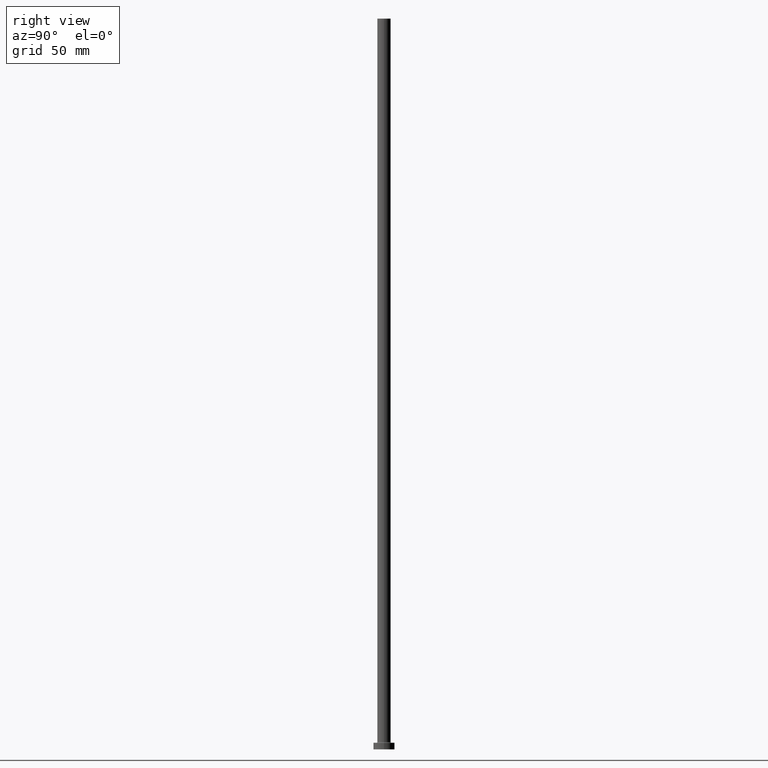
[diagram: clean part render]
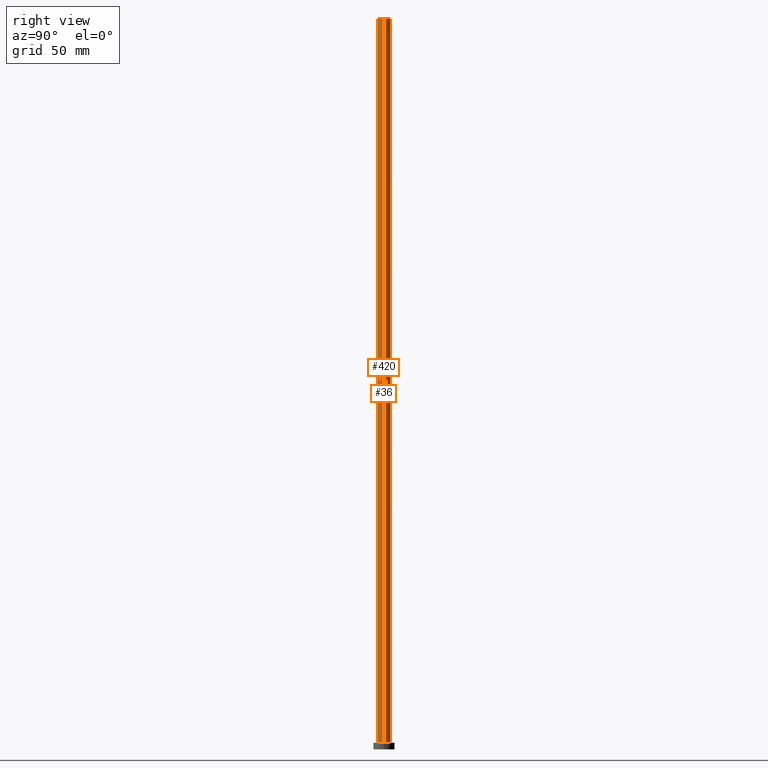
[diagram: same view with one multi-face feature highlighted, each face labeled with its STEP entity id]
A machine part, right view. The highlighted faces form ONE feature: a constant-radius fillet chain: 2 tangent blend faces with common blend radius 5 mm. The faces share edges in the B-rep.
Their STEP definitions:
[1] entity #420 (Cylinder):
#11 = CARTESIAN_POINT ( 'NONE',  ( 5.000000000000000000, 6.123233995736766282E-16, 5.499999999999949374 ) ) ;
#20 = CARTESIAN_POINT ( 'NONE',  ( 0.000000000000000000, 0.000000000000000000, 550.0000000000000000 ) ) ;
#23 = CARTESIAN_POINT ( 'NONE',  ( 5.000000000000000000, 6.123233995736766282E-16, 550.0000000000000000 ) ) ;
#44 = VECTOR ( 'NONE', #352, 1000.000000000000000 ) ;
#48 = VERTEX_POINT ( 'NONE', #23 ) ;
#51 = EDGE_CURVE ( 'NONE', #273, #48, #174, .T. ) ;
#60 = AXIS2_PLACEMENT_3D ( 'NONE', #158, #300, #225 ) ;
#71 = ORIENTED_EDGE ( 'NONE', *, *, #51, .F. ) ;
#80 = EDGE_CURVE ( 'NONE', #273, #195, #426, .T. ) ;
#82 = AXIS2_PLACEMENT_3D ( 'NONE', #20, #285, #391 ) ;
#83 = ORIENTED_EDGE ( 'NONE', *, *, #115, .F. ) ;
#106 = LINE ( 'NONE', #171, #188 ) ;
#115 = EDGE_CURVE ( 'NONE', #48, #349, #106, .T. ) ;
#117 = CARTESIAN_POINT ( 'NONE',  ( -5.000000000000000000, 0.000000000000000000, 5.499999999999949374 ) ) ;
#131 = CYLINDRICAL_SURFACE ( 'NONE', #60, 5.000000000000000000 ) ;
#158 = CARTESIAN_POINT ( 'NONE',  ( 0.000000000000000000, 0.000000000000000000, 550.0000000000000000 ) ) ;
#171 = CARTESIAN_POINT ( 'NONE',  ( 5.000000000000000000, 6.123233995736766282E-16, 550.0000000000000000 ) ) ;
#174 = CIRCLE ( 'NONE', #82, 5.000000000000000000 ) ;
#188 = VECTOR ( 'NONE', #247, 1000.000000000000000 ) ;
#191 = DIRECTION ( 'NONE',  ( 0.000000000000000000, 0.000000000000000000, 1.000000000000000000 ) ) ;
#195 = VERTEX_POINT ( 'NONE', #117 ) ;
#209 = EDGE_LOOP ( 'NONE', ( #83, #71, #214, #380 ) ) ;
#214 = ORIENTED_EDGE ( 'NONE', *, *, #80, .T. ) ;
#225 = DIRECTION ( 'NONE',  ( -1.000000000000000000, 0.000000000000000000, 0.000000000000000000 ) ) ;
#247 = DIRECTION ( 'NONE',  ( -0.000000000000000000, -0.000000000000000000, -1.000000000000000000 ) ) ;
#249 = CARTESIAN_POINT ( 'NONE',  ( -5.000000000000000000, 0.000000000000000000, 550.0000000000000000 ) ) ;
#273 = VERTEX_POINT ( 'NONE', #365 ) ;
#275 = CIRCLE ( 'NONE', #374, 5.000000000000000000 ) ;
#285 = DIRECTION ( 'NONE',  ( 0.000000000000000000, 0.000000000000000000, 1.000000000000000000 ) ) ;
#300 = DIRECTION ( 'NONE',  ( -0.000000000000000000, -0.000000000000000000, -1.000000000000000000 ) ) ;
#328 = EDGE_CURVE ( 'NONE', #195, #349, #275, .T. ) ;
#337 = FACE_OUTER_BOUND ( 'NONE', #209, .T. ) ;
#349 = VERTEX_POINT ( 'NONE', #11 ) ;
#352 = DIRECTION ( 'NONE',  ( -0.000000000000000000, -0.000000000000000000, -1.000000000000000000 ) ) ;
#365 = CARTESIAN_POINT ( 'NONE',  ( -5.000000000000000000, 0.000000000000000000, 550.0000000000000000 ) ) ;
#374 = AXIS2_PLACEMENT_3D ( 'NONE', #421, #191, #442 ) ;
#380 = ORIENTED_EDGE ( 'NONE', *, *, #328, .T. ) ;
#391 = DIRECTION ( 'NONE',  ( 1.000000000000000000, 0.000000000000000000, 0.000000000000000000 ) ) ;
#420 = ADVANCED_FACE ( 'NONE', ( #337 ), #131, .T. ) ;
#421 = CARTESIAN_POINT ( 'NONE',  ( 0.000000000000000000, 0.000000000000000000, 5.499999999999949374 ) ) ;
#426 = LINE ( 'NONE', #249, #44 ) ;
#442 = DIRECTION ( 'NONE',  ( 1.000000000000000000, 0.000000000000000000, 0.000000000000000000 ) ) ;
[2] entity #36 (Cylinder):
#11 = CARTESIAN_POINT ( 'NONE',  ( 5.000000000000000000, 6.123233995736766282E-16, 5.499999999999949374 ) ) ;
#13 = ORIENTED_EDGE ( 'NONE', *, *, #80, .F. ) ;
#23 = CARTESIAN_POINT ( 'NONE',  ( 5.000000000000000000, 6.123233995736766282E-16, 550.0000000000000000 ) ) ;
#36 = ADVANCED_FACE ( 'NONE', ( #208 ), #109, .T. ) ;
#44 = VECTOR ( 'NONE', #352, 1000.000000000000000 ) ;
#48 = VERTEX_POINT ( 'NONE', #23 ) ;
#80 = EDGE_CURVE ( 'NONE', #273, #195, #426, .T. ) ;
#94 = AXIS2_PLACEMENT_3D ( 'NONE', #332, #402, #254 ) ;
#106 = LINE ( 'NONE', #171, #188 ) ;
#109 = CYLINDRICAL_SURFACE ( 'NONE', #202, 5.000000000000000000 ) ;
#115 = EDGE_CURVE ( 'NONE', #48, #349, #106, .T. ) ;
#117 = CARTESIAN_POINT ( 'NONE',  ( -5.000000000000000000, 0.000000000000000000, 5.499999999999949374 ) ) ;
#124 = CIRCLE ( 'NONE', #94, 5.000000000000000000 ) ;
#171 = CARTESIAN_POINT ( 'NONE',  ( 5.000000000000000000, 6.123233995736766282E-16, 550.0000000000000000 ) ) ;
#188 = VECTOR ( 'NONE', #247, 1000.000000000000000 ) ;
#195 = VERTEX_POINT ( 'NONE', #117 ) ;
#199 = CIRCLE ( 'NONE', #455, 5.000000000000000000 ) ;
#202 = AXIS2_PLACEMENT_3D ( 'NONE', #322, #355, #417 ) ;
#208 = FACE_OUTER_BOUND ( 'NONE', #327, .T. ) ;
#231 = ORIENTED_EDGE ( 'NONE', *, *, #339, .T. ) ;
#240 = DIRECTION ( 'NONE',  ( 0.000000000000000000, 0.000000000000000000, 1.000000000000000000 ) ) ;
#247 = DIRECTION ( 'NONE',  ( -0.000000000000000000, -0.000000000000000000, -1.000000000000000000 ) ) ;
#249 = CARTESIAN_POINT ( 'NONE',  ( -5.000000000000000000, 0.000000000000000000, 550.0000000000000000 ) ) ;
#254 = DIRECTION ( 'NONE',  ( 1.000000000000000000, 0.000000000000000000, 0.000000000000000000 ) ) ;
#258 = ORIENTED_EDGE ( 'NONE', *, *, #115, .T. ) ;
#263 = EDGE_CURVE ( 'NONE', #48, #273, #124, .T. ) ;
#273 = VERTEX_POINT ( 'NONE', #365 ) ;
#312 = CARTESIAN_POINT ( 'NONE',  ( 0.000000000000000000, 0.000000000000000000, 5.499999999999949374 ) ) ;
#322 = CARTESIAN_POINT ( 'NONE',  ( 0.000000000000000000, 0.000000000000000000, 550.0000000000000000 ) ) ;
#327 = EDGE_LOOP ( 'NONE', ( #347, #258, #231, #13 ) ) ;
#332 = CARTESIAN_POINT ( 'NONE',  ( 0.000000000000000000, 0.000000000000000000, 550.0000000000000000 ) ) ;
#339 = EDGE_CURVE ( 'NONE', #349, #195, #199, .T. ) ;
#342 = DIRECTION ( 'NONE',  ( 1.000000000000000000, 0.000000000000000000, 0.000000000000000000 ) ) ;
#347 = ORIENTED_EDGE ( 'NONE', *, *, #263, .F. ) ;
#349 = VERTEX_POINT ( 'NONE', #11 ) ;
#352 = DIRECTION ( 'NONE',  ( -0.000000000000000000, -0.000000000000000000, -1.000000000000000000 ) ) ;
#355 = DIRECTION ( 'NONE',  ( -0.000000000000000000, -0.000000000000000000, -1.000000000000000000 ) ) ;
#365 = CARTESIAN_POINT ( 'NONE',  ( -5.000000000000000000, 0.000000000000000000, 550.0000000000000000 ) ) ;
#402 = DIRECTION ( 'NONE',  ( 0.000000000000000000, 0.000000000000000000, 1.000000000000000000 ) ) ;
#417 = DIRECTION ( 'NONE',  ( -1.000000000000000000, 0.000000000000000000, 0.000000000000000000 ) ) ;
#426 = LINE ( 'NONE', #249, #44 ) ;
#455 = AXIS2_PLACEMENT_3D ( 'NONE', #312, #240, #342 ) ;